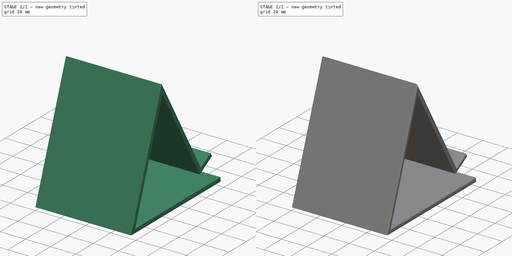
[diagram: build sequence overview — one tinted view per stage of 2, left to right]
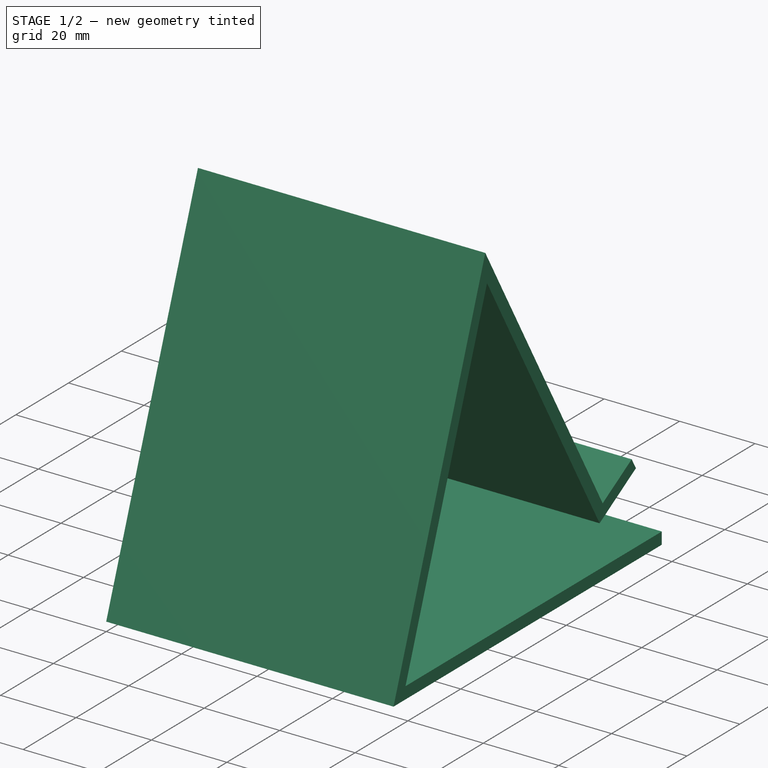
[diagram: stage 1 of 2 — iso view after this stage's code; geometry added in this stage tinted green]
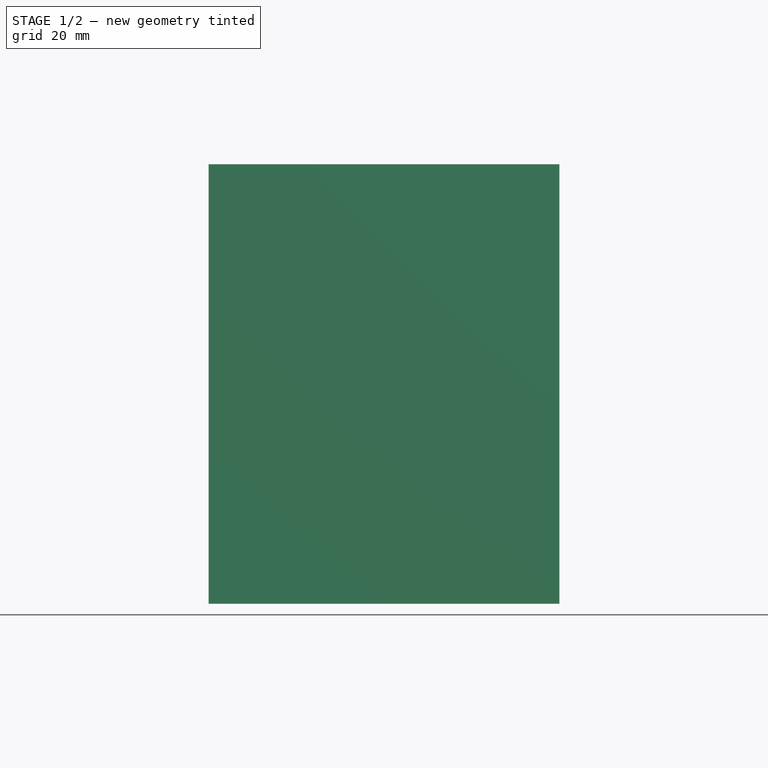
[diagram: stage 1 of 2 — front view after this stage's code; geometry added in this stage tinted green]
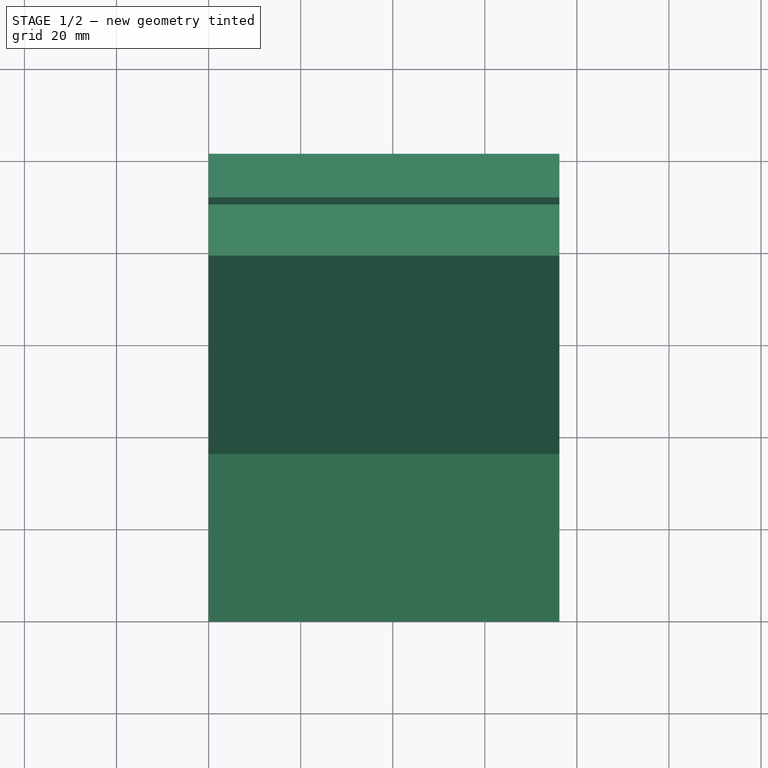
[diagram: stage 1 of 2 — top view after this stage's code; geometry added in this stage tinted green]
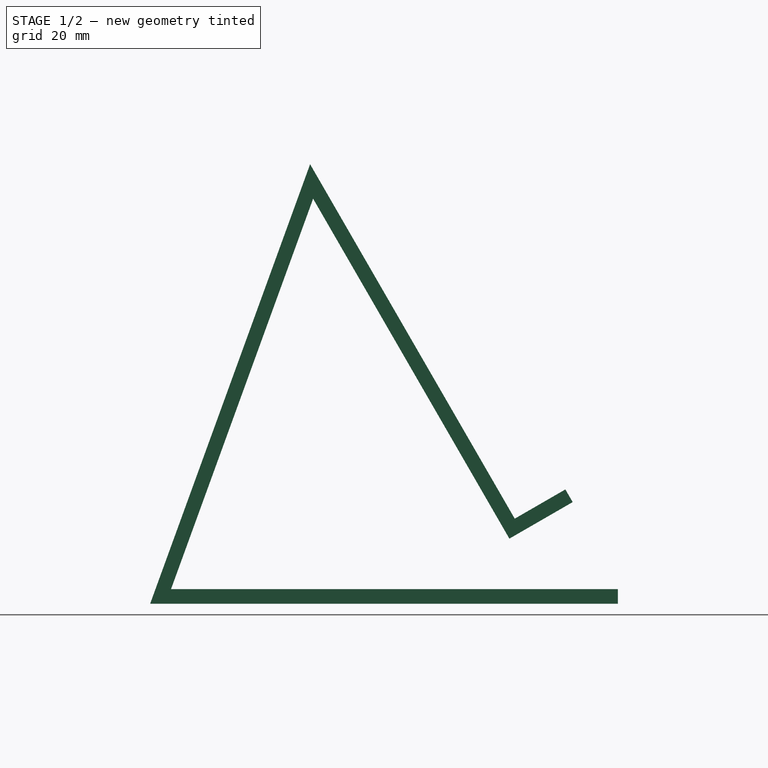
[diagram: stage 1 of 2 — right view after this stage's code; geometry added in this stage tinted green]
FCSTD DOCUMENT  (FreeCAD 0.20R29177 +233 (Git))
Label: PhoneHolder
License: All rights reserved
LicenseURL: http://en.wikipedia.org/wiki/All_rights_reserved
objects: Sketcher::SketchObject×2, PartDesign::Pad×1, PartDesign::Fillet×1, PartDesign::Plane×1, PartDesign::Body×1
note: 8 computed .brp shape members not serialized (recipe doc carries the construction recipe); baked Part::Feature solids carry a one-line shape summary decoded from their .brp

FEATURE [Sketcher::SketchObject] Sketch
  FullyConstrained = true
  MapMode = 5
  Placement = pos=(0,0,0) rot=(0.57735,0.57735,0.57735;2.0944rad)
  Support = -> [YZ_Plane]
  sketch-geometry (12):
    g0: LineSegment StartX=0 StartY=0 StartZ=0 EndX=101.6 EndY=0 EndZ=0
    g1: LineSegment StartX=0 StartY=0 StartZ=0 EndX=34.7492 EndY=95.4728 EndZ=0
    g2: LineSegment StartX=34.7492 StartY=95.4728 StartZ=0 EndX=79.1992 EndY=18.4831 EndZ=0
    g3: LineSegment StartX=79.1992 StartY=18.4831 StartZ=0 EndX=90.1978 EndY=24.8331 EndZ=0
    g4: LineSegment StartX=91.7853 StartY=22.0835 StartZ=0 EndX=78.0371 EndY=14.146 EndZ=0
    g5: LineSegment StartX=78.0371 StartY=14.146 StartZ=0 EndX=35.404 EndY=87.9887 EndZ=0
    g6: LineSegment StartX=35.404 StartY=87.9887 StartZ=0 EndX=4.53437 EndY=3.175 EndZ=0
    g7: LineSegment StartX=4.53437 StartY=3.175 StartZ=0 EndX=101.6 EndY=3.175 EndZ=0
    g8: LineSegment StartX=101.6 StartY=3.175 StartZ=0 EndX=101.6 EndY=0 EndZ=0
    g9: LineSegment StartX=91.7853 StartY=22.0835 StartZ=0 EndX=90.1978 EndY=24.8331 EndZ=0
    g10: LineSegment StartX=78.0371 StartY=14.146 StartZ=0 EndX=101.6 EndY=14.146 EndZ=0
    g11: LineSegment StartX=78.0371 StartY=14.146 StartZ=0 EndX=53.5356 EndY=0 EndZ=0
  constraints (37):
    c: Coincident(g0,g-1)
    c: PointOnObject(g0,g-1)
    c: Distance(g0) = 101.6
    c: Coincident(g1,g0)
    c: Coincident(g2,g1)
    c: Angle(g0,g1) = 1.22173
    c: Equal(g1,g0)
    c: Angle(g1,g2) = 0.872665
    c: Coincident(g3,g2)
    c: Perpendicular(g3,g2)
    c: Distance(g3) = 12.7
    c: Coincident(g5,g4)
    c: Coincident(g6,g5)
    c: Parallel(g4,g3)
    c: Parallel(g5,g2)
    c: Parallel(g6,g1)
    c: Coincident(g7,g6)
    c: Horizontal(g7)
    c: Coincident(g8,g0)
    c: Vertical(g8)
    c: Distance(g2,g5) = 3.175
    c: Distance(g5,g1) = 3.175
    c: Distance(g6,g0) = 3.175
    c: Coincident(g8,g7)
    c: Coincident(g9,g4)
    c: Coincident(g9,g3)
    c: Distance(g4,g3) = 3.175
    c: Distance(g1,g2) = 88.9
    c: Perpendicular(g3,g9)
    c: Coincident(g10,g4)
    c: Horizontal(g10)
    c: Angle(g10,g4) = 0.523599
    c: Coincident(g11,g4)
    c: PointOnObject(g11,g0)
    c: Parallel(g11,g4)
    c: Distance(g11,g0) = 53.5356  'plane_offset'
    c: Vertical(g10,g7)
FEATURE [PartDesign::Pad] Pad
  Direction = (1,-2e-16,3e-16)
  Length = 76.2
  Length2 = 10
  Placement = pos=(0,0,0) rot=(0.57735,0.57735,0.57735;2.0944rad)
  Profile = -> Sketch
  ReferenceAxis = -> Sketch [N_Axis]
  Type = 0
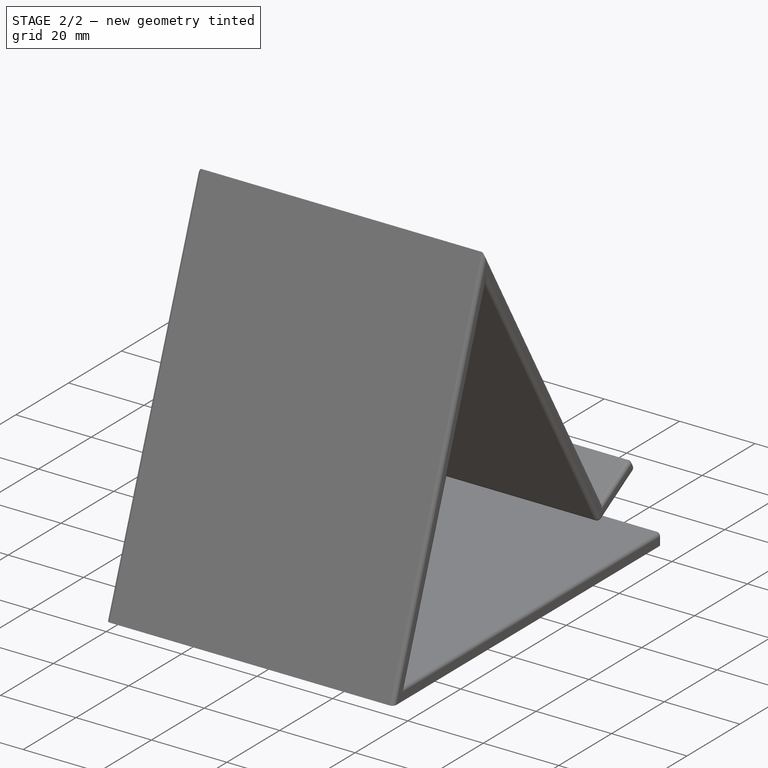
[diagram: stage 2 of 2 — iso view after this stage's code; geometry added in this stage tinted green]
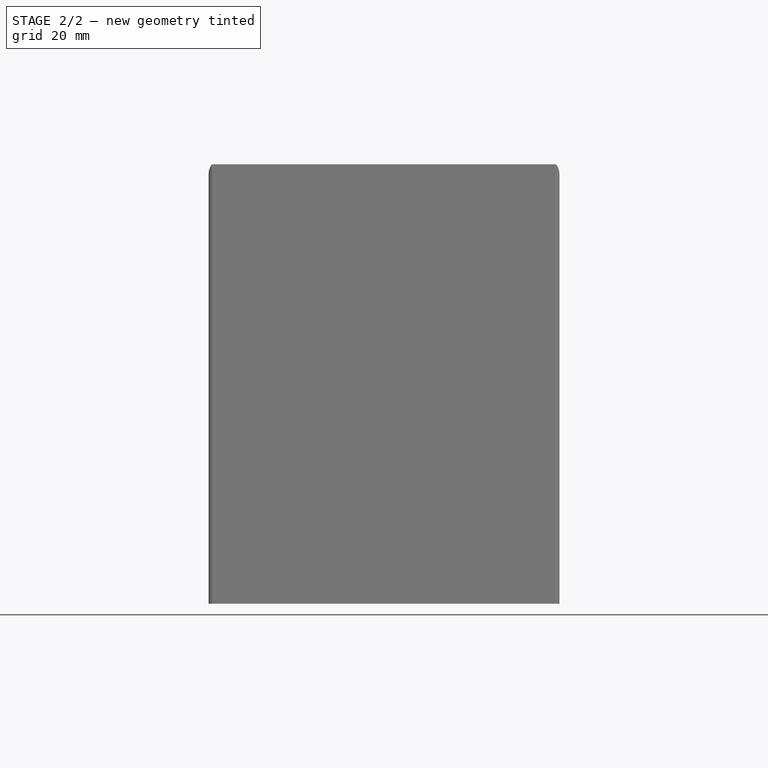
[diagram: stage 2 of 2 — front view after this stage's code; geometry added in this stage tinted green]
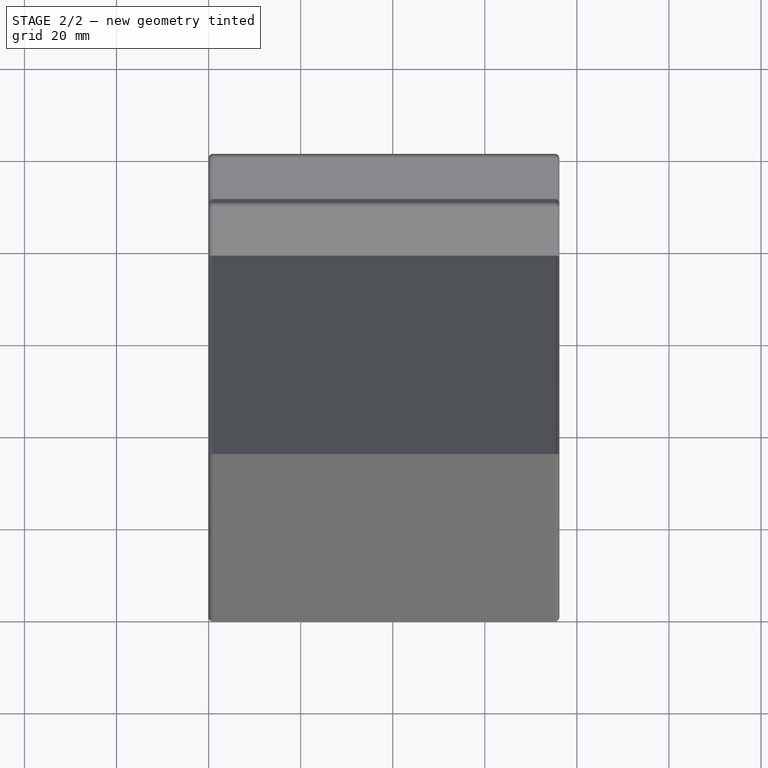
[diagram: stage 2 of 2 — top view after this stage's code; geometry added in this stage tinted green]
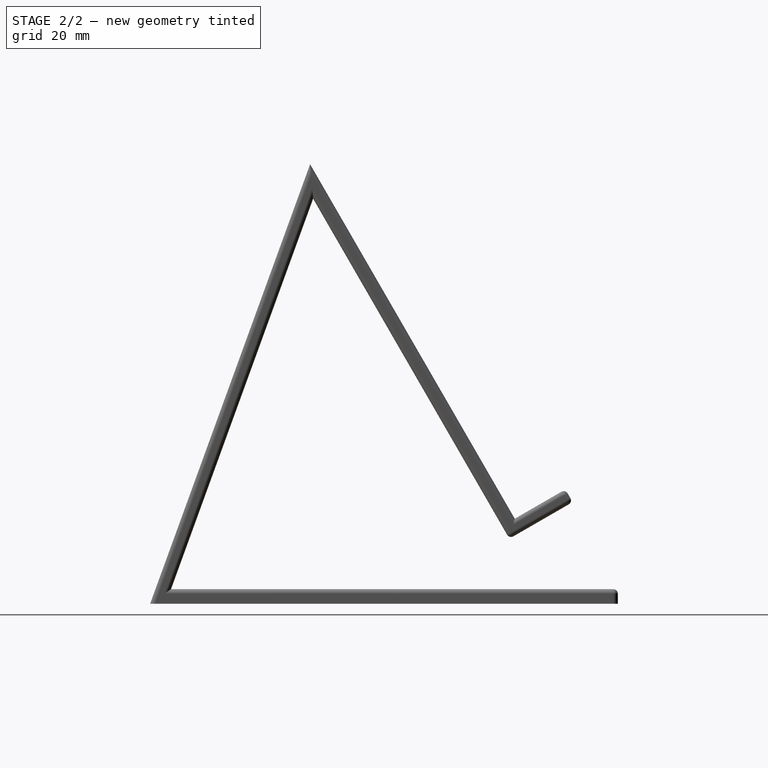
[diagram: stage 2 of 2 — right view after this stage's code; geometry added in this stage tinted green]
FEATURE [PartDesign::Fillet] Fillet
  Base = -> Pad [Edge21,Edge17,Edge19,Edge18,Edge24,Edge25,Edge12,Edge27,Edge9,Edge6,Edge29,Edge3,Edge2,Edge1,Edge4,Edge22,Edge13,Edge28,Edge10,Edge7,Edge30,Edge26]
  BaseFeature = -> Pad
  Placement = pos=(0,0,0) rot=(0.57735,0.57735,0.57735;2.0944rad)
  Radius = 0.999998
  SupportTransform = true
  UseAllEdges = false
FEATURE [PartDesign::Plane] DatumPlane
  AttachmentOffset = pos=(0,53.5356,0) rot=(1,0,0;0.523599rad)
  Length = 63.6392
  MapMode = 2
  Placement = pos=(0,53.5356,0) rot=(1,0,0;0.523599rad)
  ResizeMode = 0
  Support = -> [XY_Plane]
  Width = 106.653
  expr: .AttachmentOffset.Base.y = <<Sketch>>.Constraints.plane_offset
FEATURE [Sketcher::SketchObject] Sketch001
  ExternalGeometry = -> [Fillet]
  FullyConstrained = true
  MapMode = 5
  Placement = pos=(0,53.5356,0) rot=(1,0,0;0.523599rad)
  Support = -> [DatumPlane]
  sketch-geometry (1):
    g0: Circle CenterX=38.1 CenterY=37.317 CenterZ=0 NormalX=0 NormalY=0 NormalZ=1 AngleXU=0 Radius=3.175
  constraints (2):
    c: Symmetric(g-3,g-4,g0)
    c: Diameter(g0) = 6.35
FEATURE [PartDesign::Body] Body
  Group = -> [Sketch,Pad,Fillet,DatumPlane,Sketch001]
  Origin = -> Origin
  Tip = -> Fillet
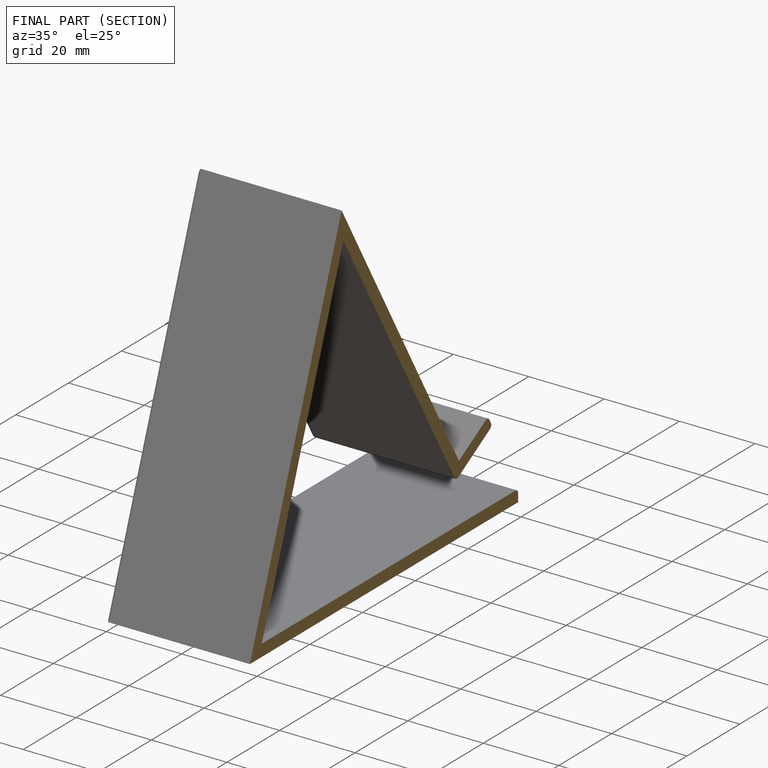
[diagram: finished part — half-section view (interior)]
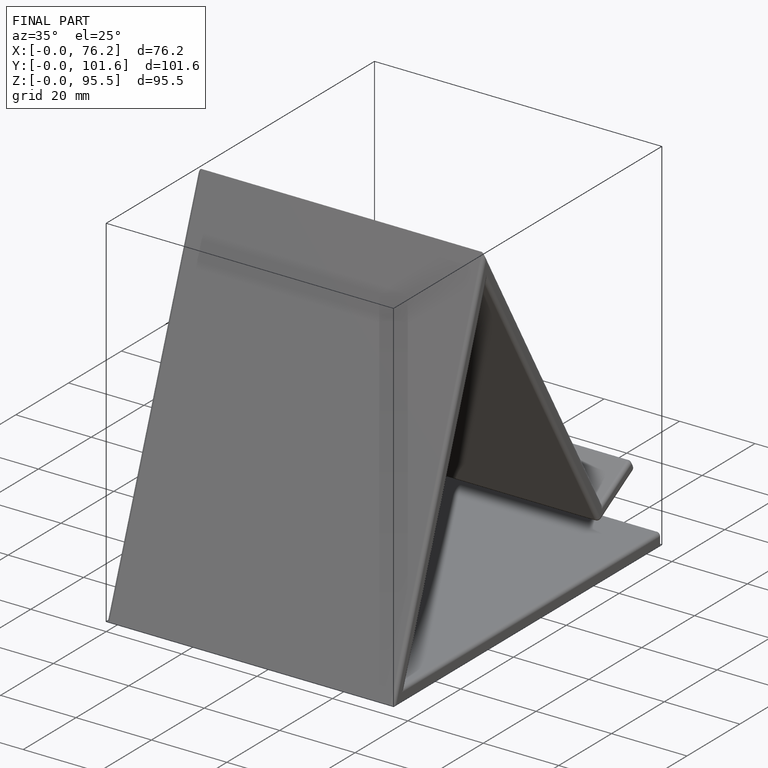
[diagram: finished part — iso view with bounding-box wireframe]
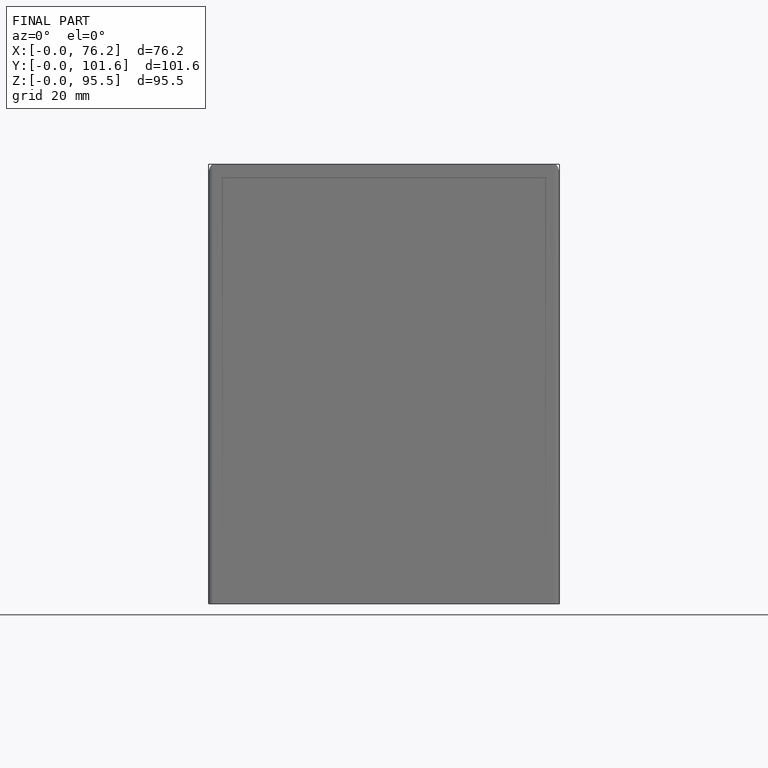
[diagram: finished part — front view with bounding-box wireframe]
